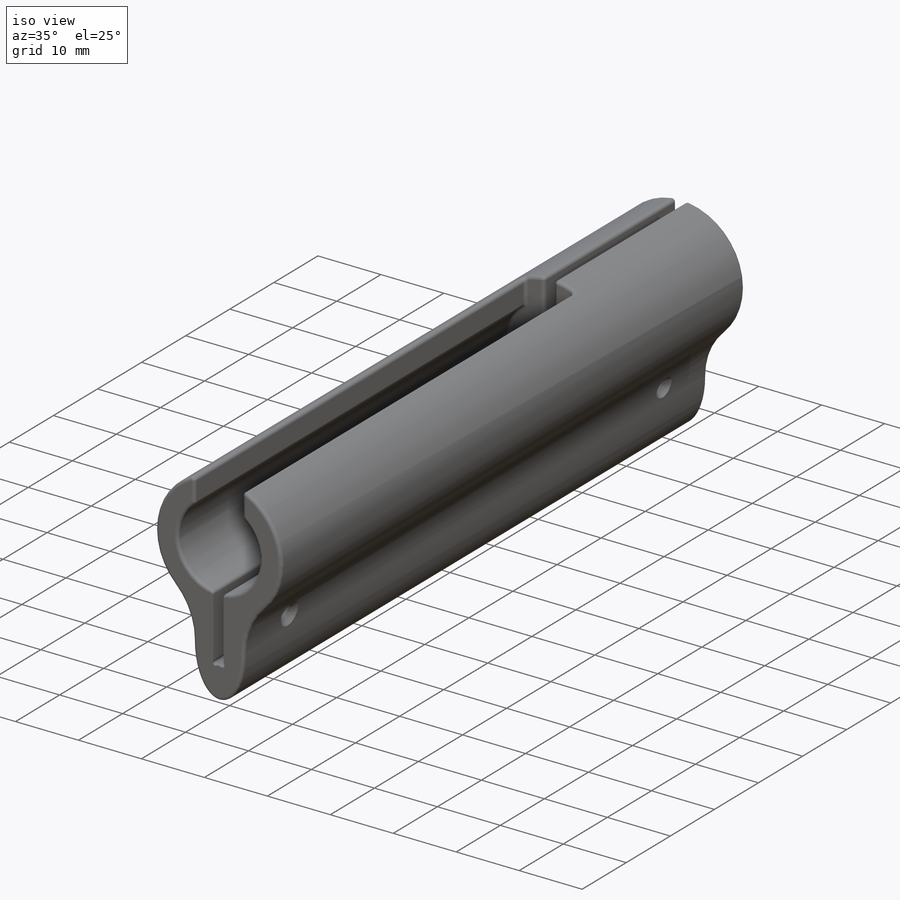
[diagram: iso view]
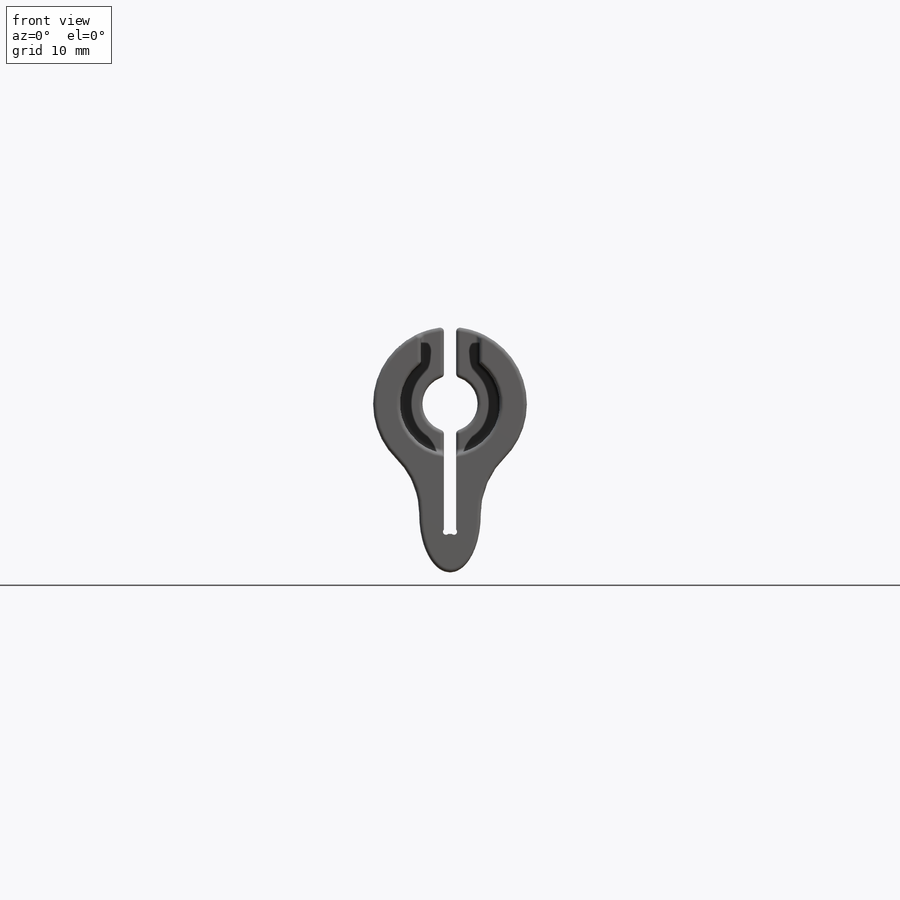
[diagram: front view]
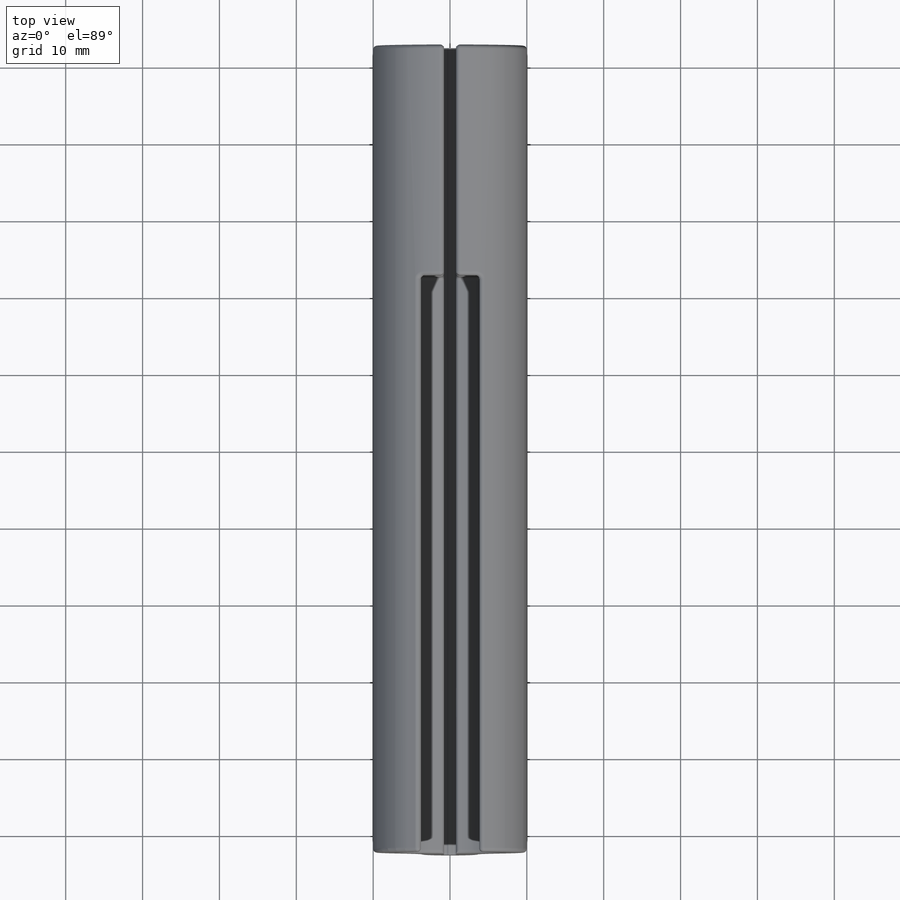
[diagram: top view]
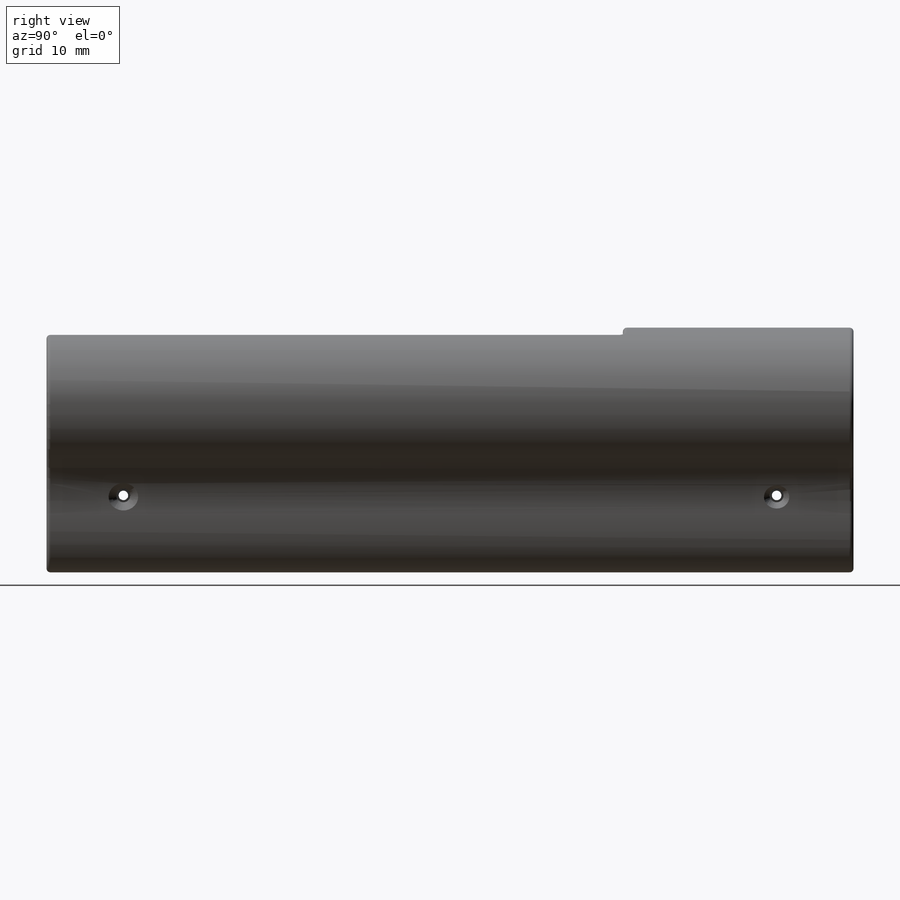
[diagram: right view]
SOLIDWORKS PART (.sldprt)
format: sldprt  version: not decoded by parser v0  size: 600,576 bytes
history: native  units: mm
features: sketch x9, cut_extrude x5, extrude x4, chamfer x2, fillet x2, material x1, mirror x1 (+12 scaffold rows collapsed)
feature tree (36):
  scaffold x12  (default folders/planes/origin — collapsed)
  material  "ABS"
  sketch  "Sketch1"  dims[D1=15.0mm D2=8.0mm]
  extrude  "Boss-Extrude1"  Depth=52.5mm
  sketch  "Sketch7"  dims[D1=1.6mm D2=10.0mm]
  cut_extrude  "Cut-Extrude5"  Depth=115.8mm
  sketch  "Sketch8"  dims[D1=~3.766377mm D2=5.0mm]
  cut_extrude  "Cut-Extrude6"  Depth=112.8mm
  sketch  "Sketch12"  dims[D1=7.5mm]
  extrude  "Boss-Extrude2"  [1 undecoded]
  chamfer  "Chamfer1"  Distance=0.5mm Angle=45deg
  sketch  "Sketch13"  dims[D1=0.8mm]
  cut_extrude  "Cut-Extrude7"  Depth=109mm
  sketch  "Sketch14"  dims[c1.D1=13.0mm c1.D2=16.0mm c1.D3=8.0mm c1.D5=10.0mm c2.D3=0.8mm c2.D4=~1.412283mm c3.D3=~4.735299mm c3.D2=0.8mm c4.D3=~6.659797mm c5.D3=90.0deg c6.D3=3.0mm c6.D4=3.0mm]
  extrude  "Boss-Extrude3"  [1 undecoded]
  sketch  "Sketch15"  dims[D1=3.6mm]
  extrude  "Boss-Extrude4"  Depth=30mm
  fillet  "Fillet3"  Radius=10mm
  fillet  "Fillet4"  Radius=0.5mm
  sketch  "Esquisse1"  dims[D3=1.8mm D1=10.0mm D2=5.0mm]
  cut_extrude  "Enlèv. mat.-Extru.1"  Depth=10mm
  sketch  "Esquisse2"  dims[D1=1.25mm]
  cut_extrude  "Enlèv. mat.-Extru.2"  Depth=10mm
  chamfer  "Chanfrein1"  Distance=1mm Angle=45deg
  mirror  "Symétrie1"
decode coverage: 20 of 23 modeling features carry decoded parameters
note: ~ marks probable driven/reference dimensions
note: 2 parameter values undecoded
note: suppression state not decoded; provenance and decode notes live in map.json
